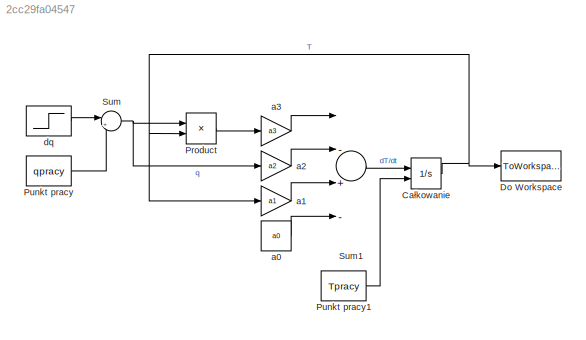
MODEL slx_2cc29fa04547
KIND model
CONFIG AbsTol = auto
CONFIG EnableMultiTasking = off
CONFIG FixedStep = 1e-3
CONFIG MaxStep = 1e-3
CONFIG MinStep = auto
CONFIG RelTol = 1e-3
CONFIG SampleTimeConstraint = Unconstrained
CONFIG Solver = ode15s
CONFIG SolverName = ode15s
CONFIG StartTime = 0.0
CONFIG StopTime = 10
BLOCK [Step]  dq
  After = dq
  SampleTime = 0
  Time = 0
BLOCK [Integrator] Całkowanie
  InitialCondition = Tpracy
  InitialConditionSource = external
  Ports = [2, 1]
BLOCK [ToWorkspace] Do Workspace
  FixptAsFi = on
  MaxDataPoints = inf
  Ports = [1]
  SampleTime = 1e-3
  Save2DSignal = 3-D array (concatenate along third dimension)
  SaveFormat = Timeseries
  VariableName = Tnielin
BLOCK [Product] Product
  InputSameDT = off
  OutDataTypeStr = Inherit: Inherit via internal rule
  Ports = [2, 1]
  RndMeth = Floor
  SaturateOnIntegerOverflow = off
BLOCK [Constant] Punkt pracy
  Value = qpracy
BLOCK [Constant] Punkt pracy1
  Value = Tpracy
BLOCK [Sum] Sum
  IconShape = round
  InputSameDT = off
  Inputs = |++
  OutDataTypeStr = Inherit: Inherit via internal rule
  Ports = [2, 1]
  SaturateOnIntegerOverflow = off
BLOCK [Sum] Sum1
  InputSameDT = off
  Inputs = |-+-+
  OutDataTypeStr = Inherit: Inherit via internal rule
  Ports = [4, 1]
  SaturateOnIntegerOverflow = off
BLOCK [Constant] a0
  Value = a0
BLOCK [Gain] a1
  Gain = a1
  OutDataTypeStr = Inherit: Inherit via internal rule
  ParamDataTypeStr = Inherit: Inherit via internal rule
  SaturateOnIntegerOverflow = off
BLOCK [Gain] a2
  Gain = a2
  OutDataTypeStr = Inherit: Inherit via internal rule
  ParamDataTypeStr = Inherit: Inherit via internal rule
  SaturateOnIntegerOverflow = off
BLOCK [Gain] a3
  Gain = a3
  OutDataTypeStr = Inherit: Inherit via internal rule
  ParamDataTypeStr = Inherit: Inherit via internal rule
  SaturateOnIntegerOverflow = off
LINE  dq:1 -> Sum:1
NET Całkowanie:1 -> Do Workspace:1, Product:2, a1:1
LINE Product:1 -> a3:1
LINE Punkt pracy1:1 -> Całkowanie:2
LINE Punkt pracy:1 -> Sum:2
LINE Sum1:1 -> Całkowanie:1
NET Sum:1 -> Product:1, a2:1
LINE a0:1 -> Sum1:4
LINE a1:1 -> Sum1:3
LINE a2:1 -> Sum1:2
LINE a3:1 -> Sum1:1
note: NET lines group one-source signal fan-out (src -> all destinations, sorted); 1:1 wires keep LINE
